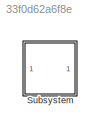
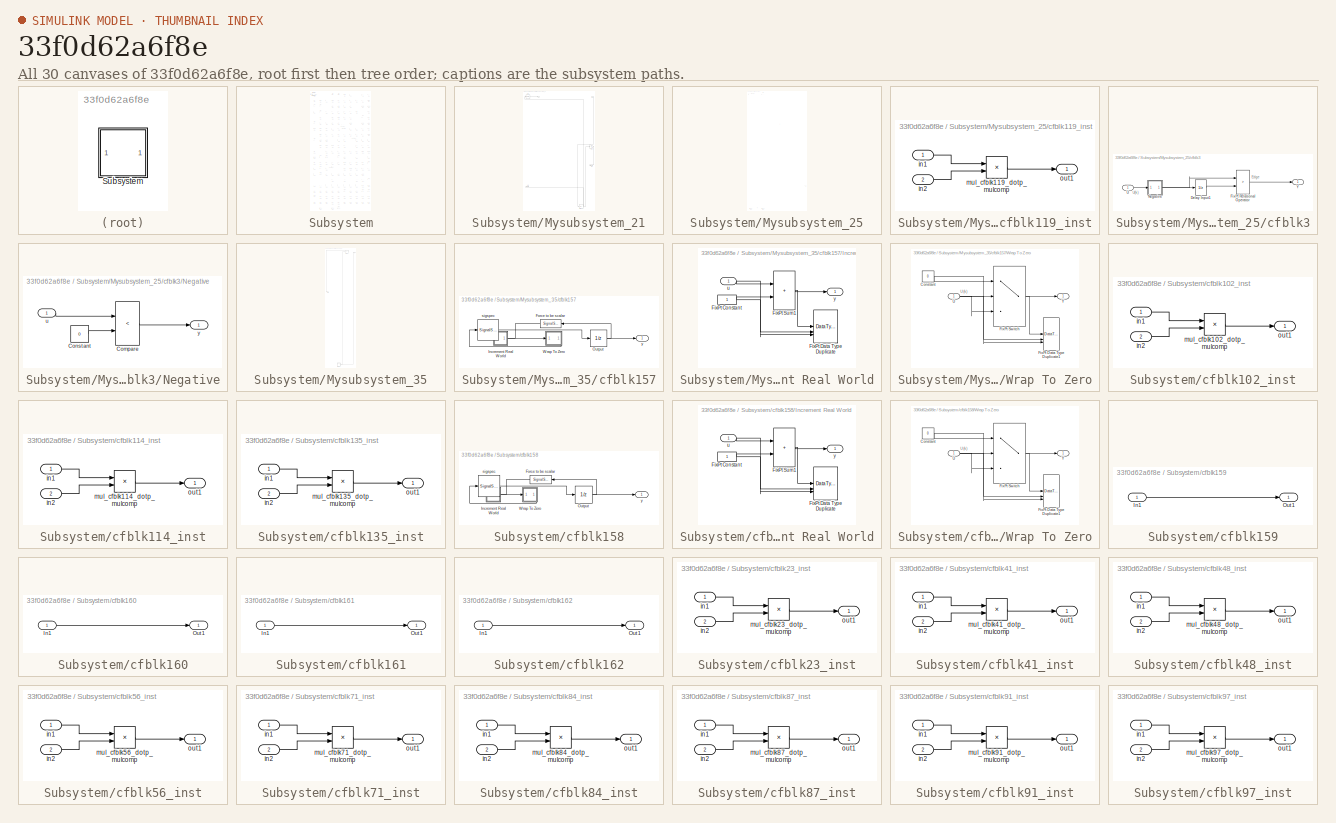
[diagram: thumbnail index - all 30 canvases of the model, root first then tree order]
MODEL slx_33f0d62a6f8e
KIND model
CONFIG AbsTol = auto
CONFIG EnableMultiTasking = off
CONFIG FixedStep = auto
CONFIG MaxStep = auto
CONFIG MinStep = auto
CONFIG RelTol = 1e-3
CONFIG SampleTimeConstraint = Unconstrained
CONFIG SolverName = VariableStepAuto
CONFIG StartTime = 0.0
CONFIG StopTime = 10.0
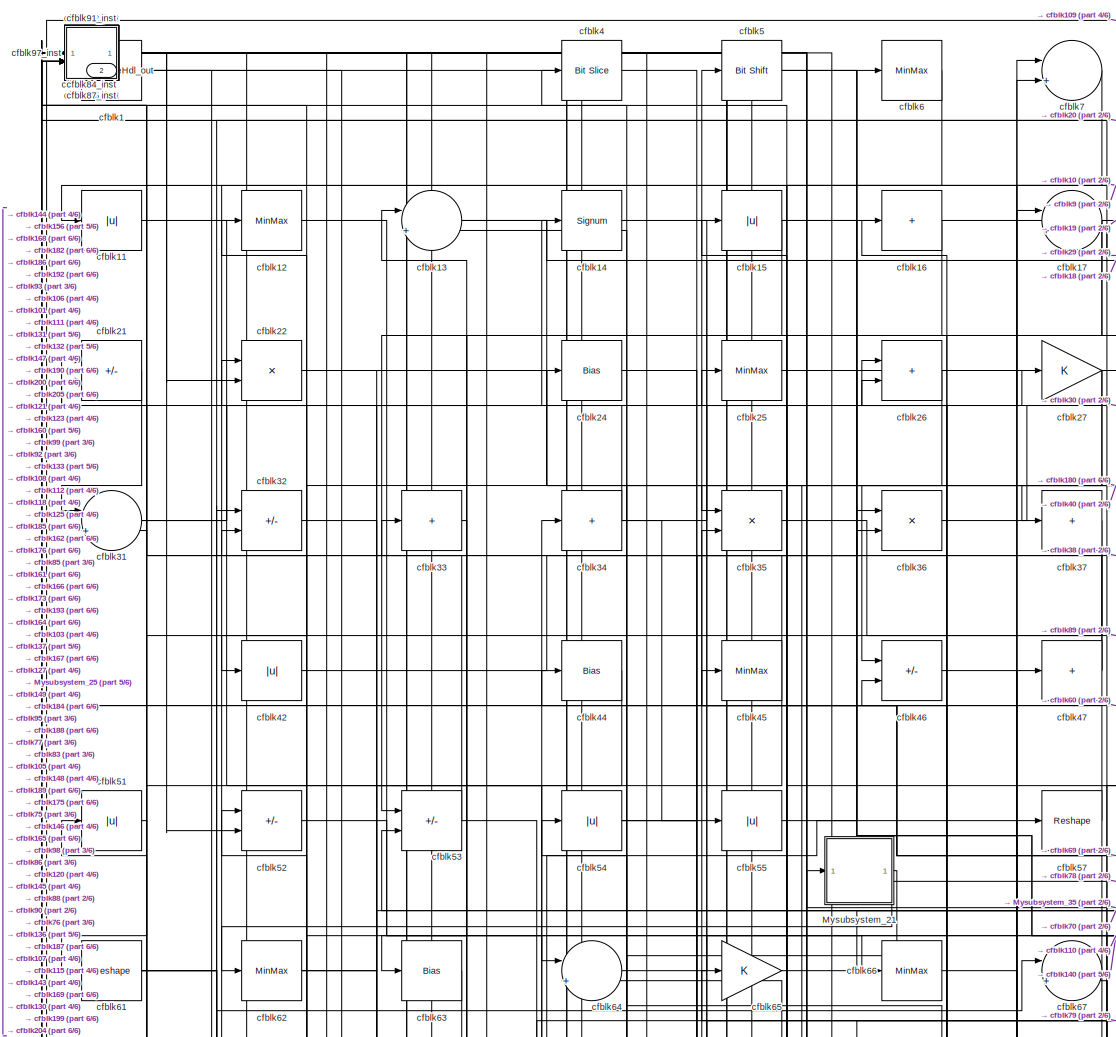
[diagram: Subsystem - part 1/6, top center region]
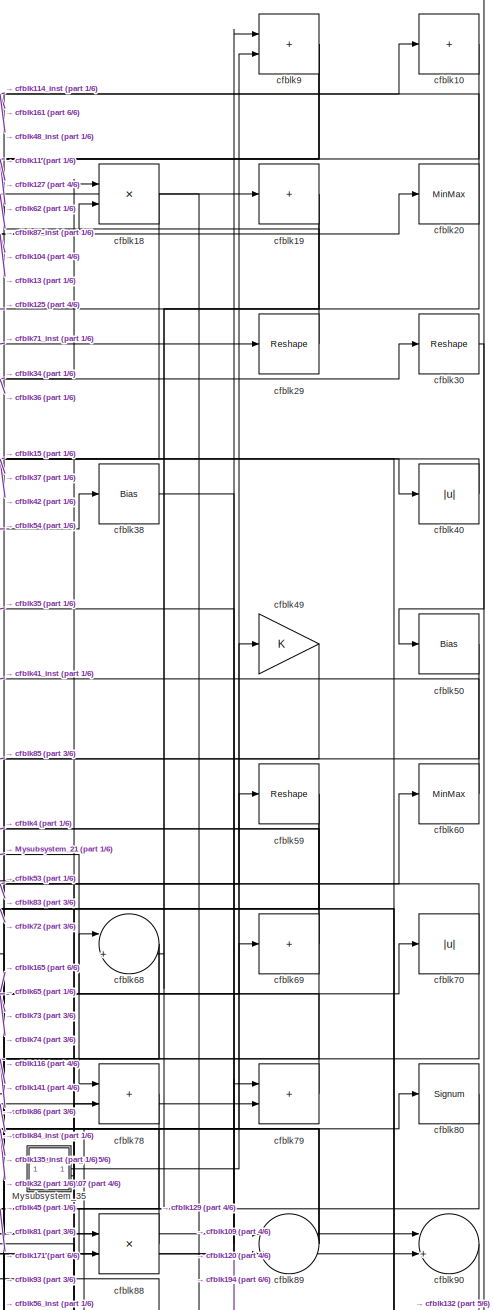
[diagram: Subsystem - part 2/6, top right region]
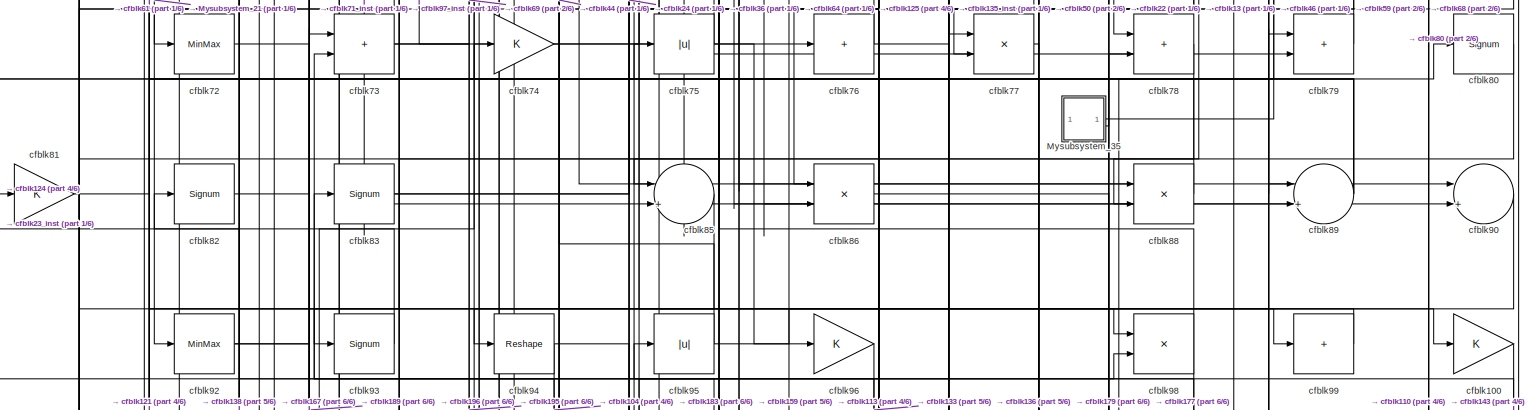
[diagram: Subsystem - part 3/6, full width, middle band]
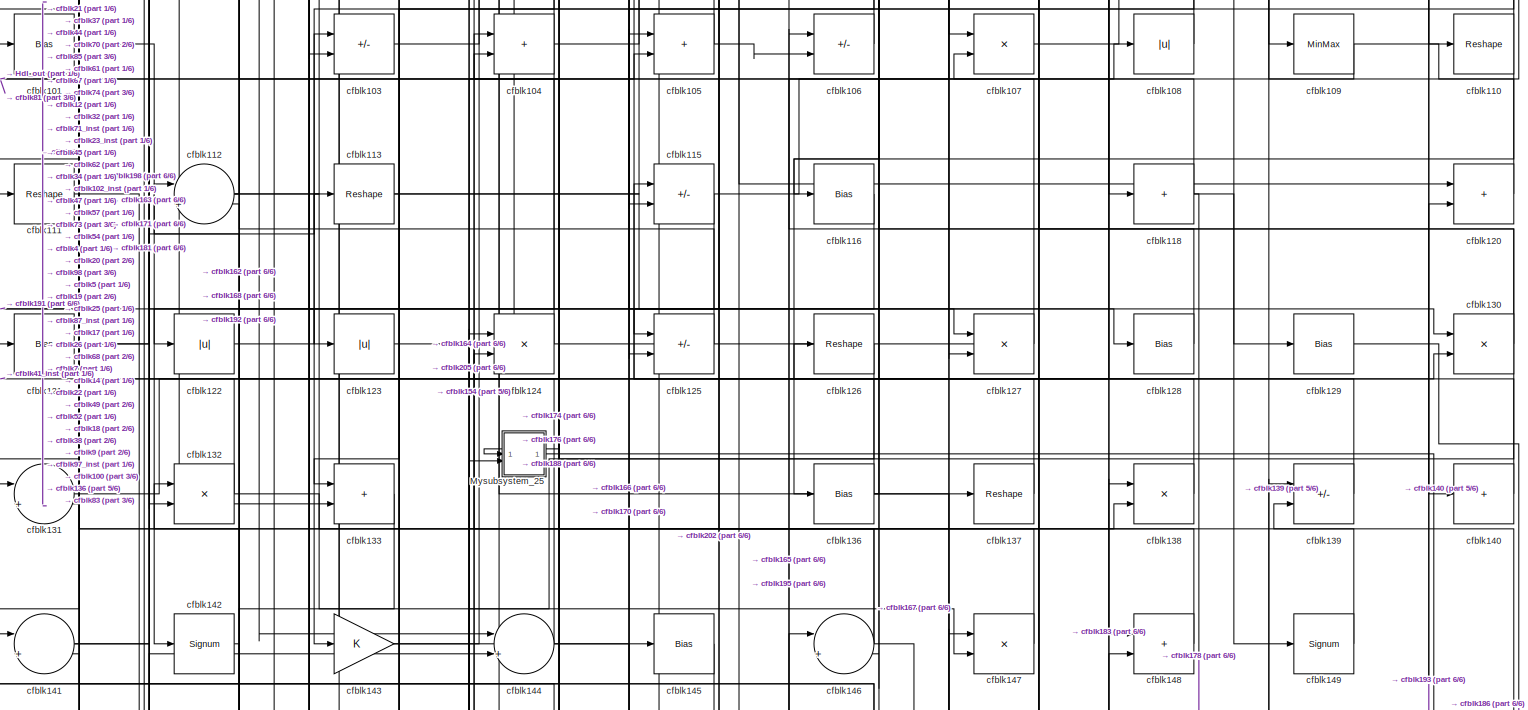
[diagram: Subsystem - part 4/6, full width, middle band]
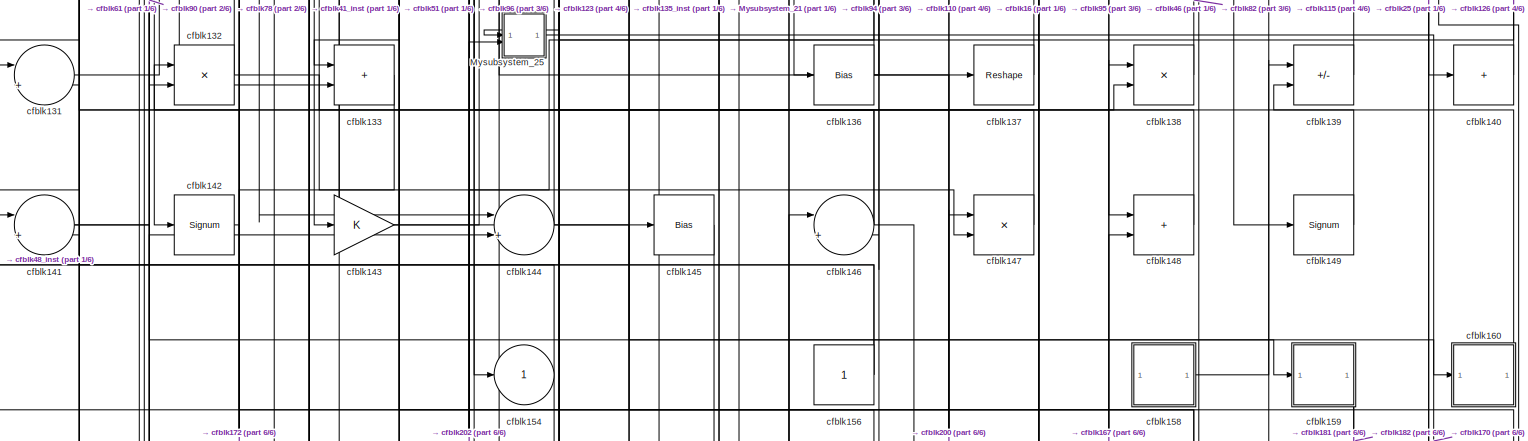
[diagram: Subsystem - part 5/6, full width, bottom band]
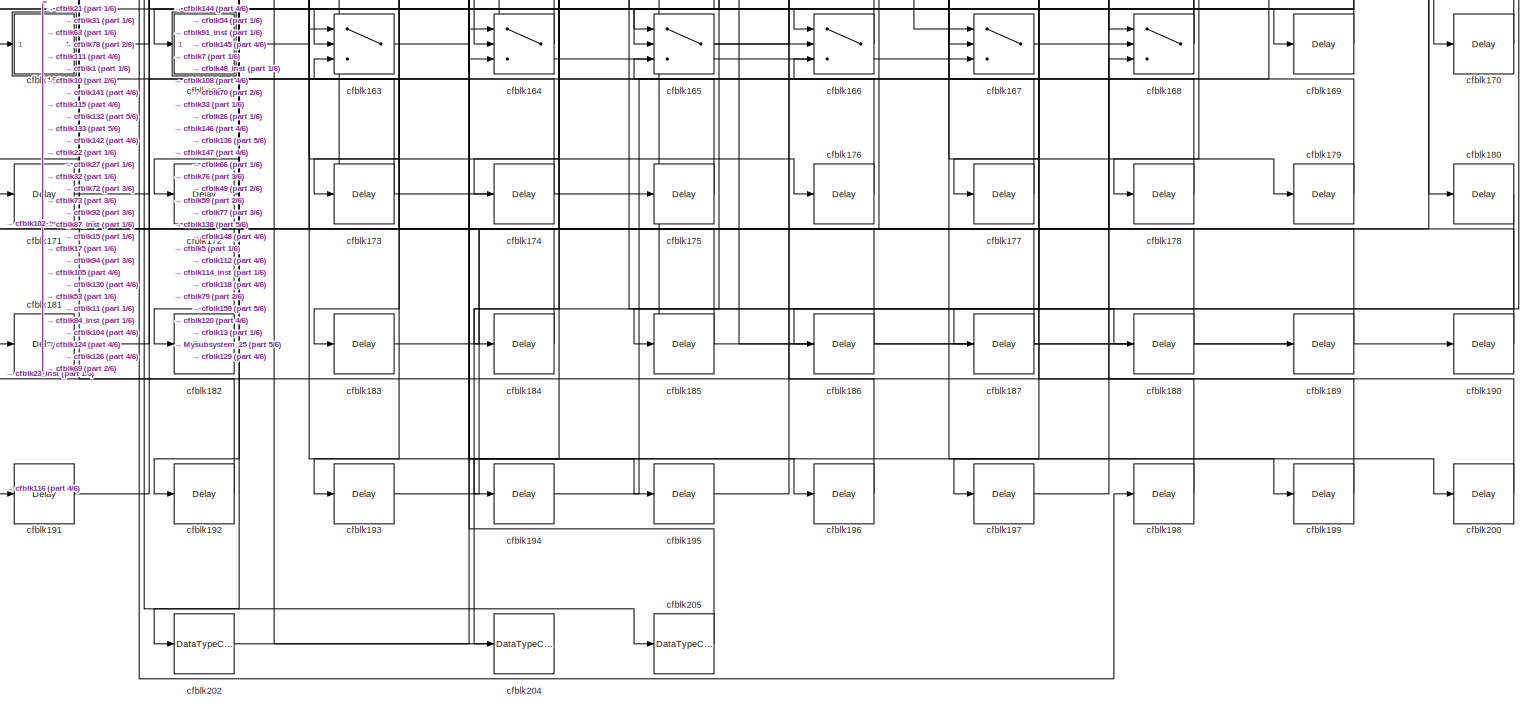
[diagram: Subsystem - part 6/6, full width, bottom band]
BLOCK [SubSystem] Subsystem
BLOCK [Outport] Subsystem/Hdl_out
  OutDataTypeStr = uint8
  Port = 2
  SampleTime = 1
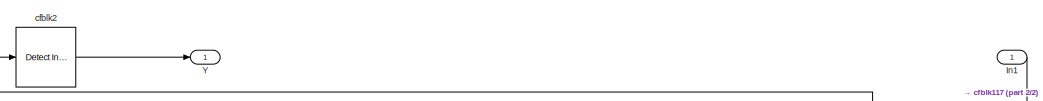
[diagram: Subsystem/Mysubsystem_21 - part 1/2, full width, top band]
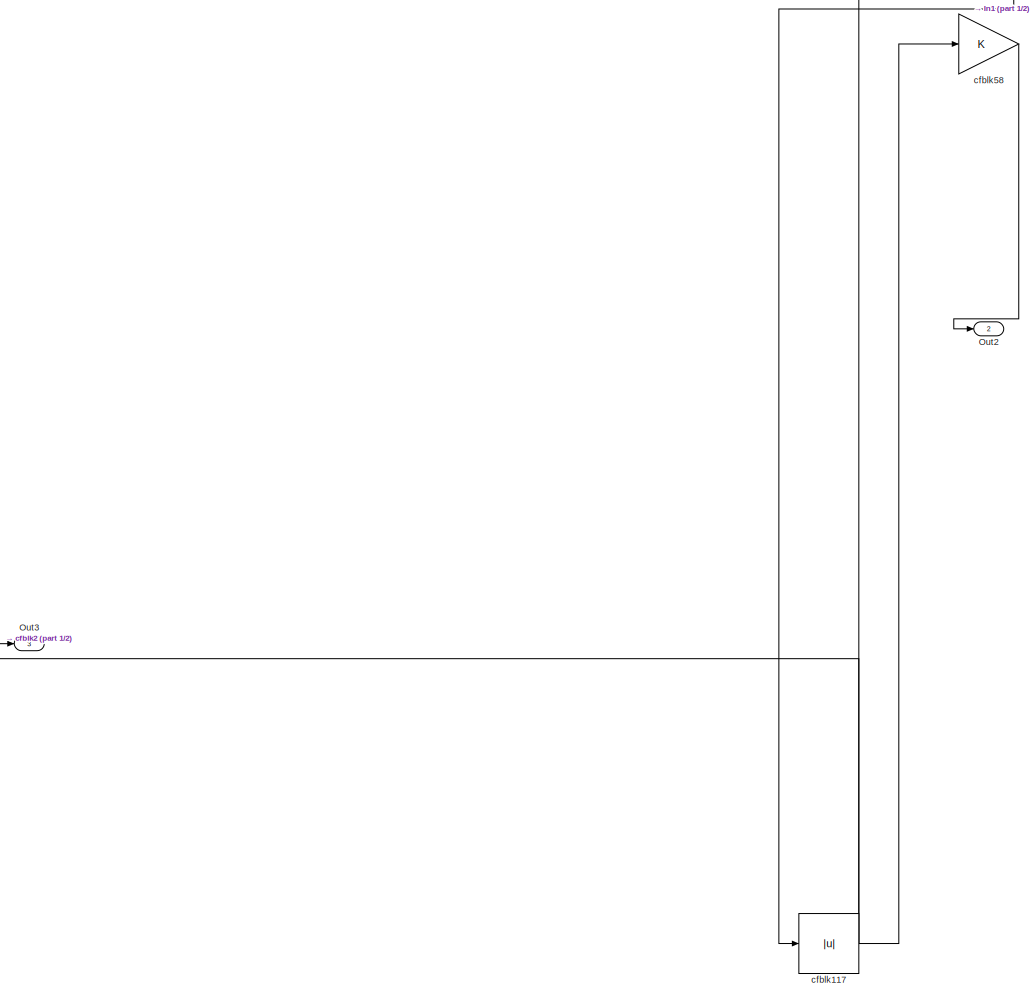
[diagram: Subsystem/Mysubsystem_21 - part 2/2, full width, bottom band]
BLOCK [SubSystem] Subsystem/Mysubsystem_21
BLOCK [Inport] Subsystem/Mysubsystem_21/In1
  OutDataTypeStr = uint8
  PortDimensions = 1
  SampleTime = 1
BLOCK [Outport] Subsystem/Mysubsystem_21/Out2
  Port = 2
  SampleTime = 1
BLOCK [Outport] Subsystem/Mysubsystem_21/Out3
  Port = 3
  SampleTime = 1
BLOCK [Outport] Subsystem/Mysubsystem_21/Y
  SampleTime = 1
BLOCK [Abs] Subsystem/Mysubsystem_21/cfblk117
  SaturateOnIntegerOverflow = off
BLOCK [Reference] Subsystem/Mysubsystem_21/cfblk2  REF=simulink/Logic and Bit
Operations/Detect
Increase
  LibrarySourceBlock = hdlsllib/Logic and Bit\nOperations/Detect\nIncrease
  SourceBlock = simulink/Logic and Bit\nOperations/Detect\nIncrease
  SourceType = Detect Increase
BLOCK [Gain] Subsystem/Mysubsystem_21/cfblk58
BLOCK [SubSystem] Subsystem/Mysubsystem_25
BLOCK [Inport] Subsystem/Mysubsystem_25/In2
  OutDataTypeStr = uint8
  Port = 2
  PortDimensions = 1
  SampleTime = 1
BLOCK [Outport] Subsystem/Mysubsystem_25/Out1
  SampleTime = 1
BLOCK [Inport] Subsystem/Mysubsystem_25/U
  OutDataTypeStr = boolean
  PortDimensions = 1
  SampleTime = 1
BLOCK [SubSystem] Subsystem/Mysubsystem_25/cfblk119_inst
BLOCK [Inport] Subsystem/Mysubsystem_25/cfblk119_inst/in1
  OutDataTypeStr = uint8
  SampleTime = 1
BLOCK [Inport] Subsystem/Mysubsystem_25/cfblk119_inst/in2
  OutDataTypeStr = uint8
  Port = 2
  SampleTime = 1
BLOCK [Product] Subsystem/Mysubsystem_25/cfblk119_inst/mul_cfblk119_dotp_mulcomp
  Inputs = **
  OutDataTypeStr = uint16
  SampleTime = 1
BLOCK [Outport] Subsystem/Mysubsystem_25/cfblk119_inst/out1
  OutDataTypeStr = uint16
  SampleTime = 1
BLOCK [DataTypeConversion] Subsystem/Mysubsystem_25/cfblk201
  OutDataTypeStr = uint8
  RndMeth = Floor
  SaturateOnIntegerOverflow = off
BLOCK [DataTypeConversion] Subsystem/Mysubsystem_25/cfblk203
  OutDataTypeStr = uint8
  RndMeth = Floor
  SaturateOnIntegerOverflow = off
BLOCK [SubSystem] Subsystem/Mysubsystem_25/cfblk3
BLOCK [UnitDelay] Subsystem/Mysubsystem_25/cfblk3/Delay Input1
  Description = Store in Global RAM
  DisableCoverage = on
  HasFrameUpgradeWarning = on
  InitialCondition = vinit
  SampleTime = -1
BLOCK [RelationalOperator] Subsystem/Mysubsystem_25/cfblk3/FixPt Relational Operator
  InputSameDT = off
  Operator = >
  OutDataTypeStr = boolean
  ZeroCross = off
BLOCK [SubSystem] Subsystem/Mysubsystem_25/cfblk3/Negative
BLOCK [RelationalOperator] Subsystem/Mysubsystem_25/cfblk3/Negative/Compare
  Operator = <
  OutDataTypeStr = boolean
  ZeroCross = off
BLOCK [Constant] Subsystem/Mysubsystem_25/cfblk3/Negative/Constant
  DisableCoverage = on
  OutDataTypeStr = Inherit: Inherit via back propagation
  PreserveConstantTs = on
  SampleTime = -1
  Value = 0
BLOCK [Inport] Subsystem/Mysubsystem_25/cfblk3/Negative/u
  OutDataTypeStr = boolean
  SampleTime = 1
BLOCK [Outport] Subsystem/Mysubsystem_25/cfblk3/Negative/y
  SampleTime = 1
BLOCK [Inport] Subsystem/Mysubsystem_25/cfblk3/U
  OutDataTypeStr = boolean
  SampleTime = 1
BLOCK [Outport] Subsystem/Mysubsystem_25/cfblk3/Y
  SampleTime = 1
BLOCK [SubSystem] Subsystem/Mysubsystem_35
BLOCK [Outport] Subsystem/Mysubsystem_35/Out2
  Port = 2
  SampleTime = 1
BLOCK [SubSystem] Subsystem/Mysubsystem_35/cfblk157
BLOCK [SignalSpecification] Subsystem/Mysubsystem_35/cfblk157/Force to be scalar
  Dimensions = 1
  DisableCoverage = on
BLOCK [SubSystem] Subsystem/Mysubsystem_35/cfblk157/Increment Real World
BLOCK [Constant] Subsystem/Mysubsystem_35/cfblk157/Increment Real World/FixPt Constant
  DisableCoverage = on
  OutDataTypeStr = Inherit: Inherit via back propagation
  SampleTime = -1
BLOCK [DataTypeDuplicate] Subsystem/Mysubsystem_35/cfblk157/Increment Real World/FixPt Data Type Duplicate
  DisableCoverage = on
  NumInputPorts = 3
BLOCK [Sum] Subsystem/Mysubsystem_35/cfblk157/Increment Real World/FixPt Sum1
  IconShape = rectangular
  InputSameDT = on
  LockScale = on
  OutDataTypeStr = Inherit: Inherit via back propagation
BLOCK [Inport] Subsystem/Mysubsystem_35/cfblk157/Increment Real World/u
  OutDataTypeStr = uint8
  SampleTime = 1
BLOCK [Outport] Subsystem/Mysubsystem_35/cfblk157/Increment Real World/y
  SampleTime = 1
BLOCK [UnitDelay] Subsystem/Mysubsystem_35/cfblk157/Output
  HasFrameUpgradeWarning = on
  InitialCondition = 0.0
  SampleTime = tsamp
BLOCK [SubSystem] Subsystem/Mysubsystem_35/cfblk157/Wrap To Zero
BLOCK [Constant] Subsystem/Mysubsystem_35/cfblk157/Wrap To Zero/Constant
  DisableCoverage = on
  OutDataTypeStr = Inherit: Inherit via back propagation
  SampleTime = -1
  Value = 0
BLOCK [DataTypeDuplicate] Subsystem/Mysubsystem_35/cfblk157/Wrap To Zero/FixPt Data Type Duplicate1
  DisableCoverage = on
  NumInputPorts = 3
BLOCK [Switch] Subsystem/Mysubsystem_35/cfblk157/Wrap To Zero/FixPt Switch
  Criteria = u2 > Threshold
  InputSameDT = off
  OutDataTypeStr = Inherit: Inherit via back propagation
  SaturateOnIntegerOverflow = off
  Threshold = Threshold
  ZeroCross = off
BLOCK [Inport] Subsystem/Mysubsystem_35/cfblk157/Wrap To Zero/U
  OutDataTypeStr = uint8
  SampleTime = 1
BLOCK [Outport] Subsystem/Mysubsystem_35/cfblk157/Wrap To Zero/Y
  SampleTime = 1
BLOCK [SignalSpecification] Subsystem/Mysubsystem_35/cfblk157/sigspec
  Dimensions = 1
  OutDataTypeStr = uint8
BLOCK [Outport] Subsystem/Mysubsystem_35/cfblk157/y
  SampleTime = 1
BLOCK [Sum] Subsystem/Mysubsystem_35/cfblk8
  IconShape = rectangular
  Inputs = +
BLOCK [Outport] Subsystem/Mysubsystem_35/y
  SampleTime = 1
BLOCK [Reference] Subsystem/cfblk1  REF=simulink/Logic and Bit
Operations/Bit Clear
  LibrarySourceBlock = hdlsllib/Logic and Bit\nOperations/Bit Clear
  SourceBlock = simulink/Logic and Bit\nOperations/Bit Clear
  SourceType = Bit Clear
BLOCK [Sum] Subsystem/cfblk10
  IconShape = rectangular
  Inputs = +
  OutDataTypeStr = uint8
BLOCK [Gain] Subsystem/cfblk100
  OutDataTypeStr = uint8
BLOCK [Bias] Subsystem/cfblk101
  Bias = 0.0
  SaturateOnIntegerOverflow = off
BLOCK [SubSystem] Subsystem/cfblk102_inst
BLOCK [Inport] Subsystem/cfblk102_inst/in1
  OutDataTypeStr = uint8
  SampleTime = 1
BLOCK [Inport] Subsystem/cfblk102_inst/in2
  OutDataTypeStr = uint8
  Port = 2
  SampleTime = 1
BLOCK [Product] Subsystem/cfblk102_inst/mul_cfblk102_dotp_mulcomp
  Inputs = **
  OutDataTypeStr = uint8
  SampleTime = 1
BLOCK [Outport] Subsystem/cfblk102_inst/out1
  OutDataTypeStr = uint8
  SampleTime = 1
BLOCK [Sum] Subsystem/cfblk103
  IconShape = rectangular
  Inputs = +-
  OutDataTypeStr = uint8
BLOCK [Sum] Subsystem/cfblk104
  IconShape = rectangular
  OutDataTypeStr = uint8
BLOCK [Sum] Subsystem/cfblk105
  IconShape = rectangular
  OutDataTypeStr = uint8
BLOCK [Sum] Subsystem/cfblk106
  IconShape = rectangular
  Inputs = +-
  OutDataTypeStr = uint8
BLOCK [Product] Subsystem/cfblk107
  Inputs = */
  OutDataTypeStr = uint8
  RndMeth = Zero
  SaturateOnIntegerOverflow = on
BLOCK [Abs] Subsystem/cfblk108
  OutDataTypeStr = uint8
  SaturateOnIntegerOverflow = off
BLOCK [MinMax] Subsystem/cfblk109
  OutDataTypeStr = uint8
BLOCK [Abs] Subsystem/cfblk11
  OutDataTypeStr = uint8
  SaturateOnIntegerOverflow = off
BLOCK [Reshape] Subsystem/cfblk110
BLOCK [Reshape] Subsystem/cfblk111
BLOCK [Sum] Subsystem/cfblk112
  Inputs = |++
  OutDataTypeStr = uint8
BLOCK [Reshape] Subsystem/cfblk113
BLOCK [SubSystem] Subsystem/cfblk114_inst
BLOCK [Inport] Subsystem/cfblk114_inst/in1
  OutDataTypeStr = uint8
  SampleTime = 1
BLOCK [Inport] Subsystem/cfblk114_inst/in2
  OutDataTypeStr = uint8
  Port = 2
  SampleTime = 1
BLOCK [Product] Subsystem/cfblk114_inst/mul_cfblk114_dotp_mulcomp
  Inputs = **
  OutDataTypeStr = uint8
  SampleTime = 1
BLOCK [Outport] Subsystem/cfblk114_inst/out1
  OutDataTypeStr = uint8
  SampleTime = 1
BLOCK [Sum] Subsystem/cfblk115
  IconShape = rectangular
  Inputs = +-
  OutDataTypeStr = uint8
BLOCK [Bias] Subsystem/cfblk116
  Bias = 0.0
  SaturateOnIntegerOverflow = off
BLOCK [Sum] Subsystem/cfblk118
  IconShape = rectangular
  Inputs = +
  OutDataTypeStr = uint8
BLOCK [MinMax] Subsystem/cfblk12
  OutDataTypeStr = uint8
BLOCK [Sum] Subsystem/cfblk120
  IconShape = rectangular
  OutDataTypeStr = uint8
BLOCK [Bias] Subsystem/cfblk121
  Bias = 0.0
  SaturateOnIntegerOverflow = off
BLOCK [Abs] Subsystem/cfblk122
  OutDataTypeStr = uint8
  SaturateOnIntegerOverflow = off
BLOCK [Abs] Subsystem/cfblk123
  OutDataTypeStr = uint8
  SaturateOnIntegerOverflow = off
BLOCK [Product] Subsystem/cfblk124
  Inputs = */
  OutDataTypeStr = uint8
  RndMeth = Zero
  SaturateOnIntegerOverflow = on
BLOCK [Sum] Subsystem/cfblk125
  IconShape = rectangular
  Inputs = +-
  OutDataTypeStr = uint8
BLOCK [Reshape] Subsystem/cfblk126
BLOCK [Product] Subsystem/cfblk127
  Inputs = */
  OutDataTypeStr = uint8
  RndMeth = Zero
  SaturateOnIntegerOverflow = on
BLOCK [Bias] Subsystem/cfblk128
  Bias = 0.0
  SaturateOnIntegerOverflow = off
BLOCK [Bias] Subsystem/cfblk129
  Bias = 0.0
  SaturateOnIntegerOverflow = off
BLOCK [Sum] Subsystem/cfblk13
  Inputs = |++
  OutDataTypeStr = uint8
BLOCK [Product] Subsystem/cfblk130
  Inputs = */
  OutDataTypeStr = uint8
  RndMeth = Zero
  SaturateOnIntegerOverflow = on
BLOCK [Sum] Subsystem/cfblk131
  Inputs = |++
  OutDataTypeStr = uint8
BLOCK [Product] Subsystem/cfblk132
  Inputs = */
  OutDataTypeStr = uint8
  RndMeth = Zero
  SaturateOnIntegerOverflow = on
BLOCK [Sum] Subsystem/cfblk133
  IconShape = rectangular
  OutDataTypeStr = uint8
BLOCK [SubSystem] Subsystem/cfblk135_inst
BLOCK [Inport] Subsystem/cfblk135_inst/in1
  OutDataTypeStr = uint8
  SampleTime = 1
BLOCK [Inport] Subsystem/cfblk135_inst/in2
  OutDataTypeStr = uint8
  Port = 2
  SampleTime = 1
BLOCK [Product] Subsystem/cfblk135_inst/mul_cfblk135_dotp_mulcomp
  Inputs = **
  OutDataTypeStr = uint8
  SampleTime = 1
BLOCK [Outport] Subsystem/cfblk135_inst/out1
  OutDataTypeStr = uint8
  SampleTime = 1
BLOCK [Bias] Subsystem/cfblk136
  Bias = 0.0
  SaturateOnIntegerOverflow = off
BLOCK [Reshape] Subsystem/cfblk137
BLOCK [Product] Subsystem/cfblk138
  Inputs = */
  OutDataTypeStr = uint8
  RndMeth = Zero
  SaturateOnIntegerOverflow = on
BLOCK [Sum] Subsystem/cfblk139
  IconShape = rectangular
  Inputs = +-
  OutDataTypeStr = uint8
BLOCK [Signum] Subsystem/cfblk14
BLOCK [Sum] Subsystem/cfblk140
  IconShape = rectangular
  Inputs = +
  OutDataTypeStr = uint8
BLOCK [Sum] Subsystem/cfblk141
  Inputs = |++
  OutDataTypeStr = uint8
BLOCK [Signum] Subsystem/cfblk142
BLOCK [Gain] Subsystem/cfblk143
  OutDataTypeStr = uint8
BLOCK [Sum] Subsystem/cfblk144
  Inputs = |++
  OutDataTypeStr = uint8
BLOCK [Bias] Subsystem/cfblk145
  Bias = 0.0
  SaturateOnIntegerOverflow = off
BLOCK [Sum] Subsystem/cfblk146
  Inputs = |++
  OutDataTypeStr = uint8
BLOCK [Product] Subsystem/cfblk147
  Inputs = */
  OutDataTypeStr = uint8
  RndMeth = Zero
  SaturateOnIntegerOverflow = on
BLOCK [Sum] Subsystem/cfblk148
  IconShape = rectangular
  OutDataTypeStr = uint8
BLOCK [Signum] Subsystem/cfblk149
BLOCK [Abs] Subsystem/cfblk15
  OutDataTypeStr = uint8
  SaturateOnIntegerOverflow = off
BLOCK [Outport] Subsystem/cfblk154
  OutDataTypeStr = uint8
  SampleTime = 1
  VectorParamsAs1DForOutWhenUnconnected = off
BLOCK [Constant] Subsystem/cfblk156
  OutDataTypeStr = uint8
  SampleTime = -1
BLOCK [SubSystem] Subsystem/cfblk158
BLOCK [SignalSpecification] Subsystem/cfblk158/Force to be scalar
  Dimensions = 1
  DisableCoverage = on
BLOCK [SubSystem] Subsystem/cfblk158/Increment Real World
BLOCK [Constant] Subsystem/cfblk158/Increment Real World/FixPt Constant
  DisableCoverage = on
  OutDataTypeStr = Inherit: Inherit via back propagation
  SampleTime = -1
BLOCK [DataTypeDuplicate] Subsystem/cfblk158/Increment Real World/FixPt Data Type Duplicate
  DisableCoverage = on
  NumInputPorts = 3
BLOCK [Sum] Subsystem/cfblk158/Increment Real World/FixPt Sum1
  IconShape = rectangular
  InputSameDT = on
  LockScale = on
  OutDataTypeStr = Inherit: Inherit via back propagation
BLOCK [Inport] Subsystem/cfblk158/Increment Real World/u
  OutDataTypeStr = uint16
  SampleTime = 1
BLOCK [Outport] Subsystem/cfblk158/Increment Real World/y
  SampleTime = 1
BLOCK [UnitDelay] Subsystem/cfblk158/Output
  HasFrameUpgradeWarning = on
  InitialCondition = 0.0
  SampleTime = tsamp
BLOCK [SubSystem] Subsystem/cfblk158/Wrap To Zero
BLOCK [Constant] Subsystem/cfblk158/Wrap To Zero/Constant
  DisableCoverage = on
  OutDataTypeStr = Inherit: Inherit via back propagation
  SampleTime = -1
  Value = 0
BLOCK [DataTypeDuplicate] Subsystem/cfblk158/Wrap To Zero/FixPt Data Type Duplicate1
  DisableCoverage = on
  NumInputPorts = 3
BLOCK [Switch] Subsystem/cfblk158/Wrap To Zero/FixPt Switch
  Criteria = u2 > Threshold
  InputSameDT = off
  OutDataTypeStr = Inherit: Inherit via back propagation
  SaturateOnIntegerOverflow = off
  Threshold = Threshold
  ZeroCross = off
BLOCK [Inport] Subsystem/cfblk158/Wrap To Zero/U
  OutDataTypeStr = uint16
  SampleTime = 1
BLOCK [Outport] Subsystem/cfblk158/Wrap To Zero/Y
  SampleTime = 1
BLOCK [SignalSpecification] Subsystem/cfblk158/sigspec
  Dimensions = 1
  OutDataTypeStr = uint16
BLOCK [Outport] Subsystem/cfblk158/y
  SampleTime = 1
BLOCK [SubSystem] Subsystem/cfblk159
BLOCK [Inport] Subsystem/cfblk159/In1
  OutDataTypeStr = uint8
  PortDimensions = 1
  SampleTime = 1
BLOCK [Outport] Subsystem/cfblk159/Out1
  SampleTime = 1
BLOCK [Sum] Subsystem/cfblk16
  IconShape = rectangular
  Inputs = +
  OutDataTypeStr = uint8
BLOCK [SubSystem] Subsystem/cfblk160
BLOCK [Inport] Subsystem/cfblk160/In1
  OutDataTypeStr = uint8
  PortDimensions = 1
  SampleTime = 1
BLOCK [Outport] Subsystem/cfblk160/Out1
  SampleTime = 1
BLOCK [SubSystem] Subsystem/cfblk161
BLOCK [Inport] Subsystem/cfblk161/In1
  OutDataTypeStr = uint8
  PortDimensions = 1
  SampleTime = 1
BLOCK [Outport] Subsystem/cfblk161/Out1
  SampleTime = 1
BLOCK [SubSystem] Subsystem/cfblk162
BLOCK [Inport] Subsystem/cfblk162/In1
  OutDataTypeStr = uint8
  PortDimensions = 1
  SampleTime = 1
BLOCK [Outport] Subsystem/cfblk162/Out1
  SampleTime = 1
BLOCK [Switch] Subsystem/cfblk163
  InputSameDT = off
  OutDataTypeStr = uint8
  SaturateOnIntegerOverflow = off
BLOCK [Switch] Subsystem/cfblk164
  InputSameDT = off
  OutDataTypeStr = uint8
  SaturateOnIntegerOverflow = off
BLOCK [Switch] Subsystem/cfblk165
  InputSameDT = off
  OutDataTypeStr = uint8
  SaturateOnIntegerOverflow = off
BLOCK [Switch] Subsystem/cfblk166
  InputSameDT = off
  OutDataTypeStr = uint8
  SaturateOnIntegerOverflow = off
BLOCK [Switch] Subsystem/cfblk167
  InputSameDT = off
  OutDataTypeStr = uint8
  SaturateOnIntegerOverflow = off
BLOCK [Switch] Subsystem/cfblk168
  InputSameDT = off
  OutDataTypeStr = uint8
  SaturateOnIntegerOverflow = off
BLOCK [Delay] Subsystem/cfblk169
  InputPortMap = u0
  SampleTime = 1
BLOCK [Sum] Subsystem/cfblk17
  Inputs = |++
  OutDataTypeStr = uint8
BLOCK [Delay] Subsystem/cfblk170
  InputPortMap = u0
  SampleTime = 1
BLOCK [Delay] Subsystem/cfblk171
  InputPortMap = u0
  SampleTime = 1
BLOCK [Delay] Subsystem/cfblk172
  InputPortMap = u0
  SampleTime = 1
BLOCK [Delay] Subsystem/cfblk173
  InputPortMap = u0
  SampleTime = 1
BLOCK [Delay] Subsystem/cfblk174
  InputPortMap = u0
  SampleTime = 1
BLOCK [Delay] Subsystem/cfblk175
  InputPortMap = u0
  SampleTime = 1
BLOCK [Delay] Subsystem/cfblk176
  InputPortMap = u0
  SampleTime = 1
BLOCK [Delay] Subsystem/cfblk177
  InputPortMap = u0
  SampleTime = 1
BLOCK [Delay] Subsystem/cfblk178
  InputPortMap = u0
  SampleTime = 1
BLOCK [Delay] Subsystem/cfblk179
  InputPortMap = u0
  SampleTime = 1
BLOCK [Product] Subsystem/cfblk18
  Inputs = */
  OutDataTypeStr = uint8
  RndMeth = Zero
  SaturateOnIntegerOverflow = on
BLOCK [Delay] Subsystem/cfblk180
  InputPortMap = u0
  SampleTime = 1
BLOCK [Delay] Subsystem/cfblk181
  InputPortMap = u0
  SampleTime = 1
BLOCK [Delay] Subsystem/cfblk182
  InputPortMap = u0
  SampleTime = 1
BLOCK [Delay] Subsystem/cfblk183
  InputPortMap = u0
  SampleTime = 1
BLOCK [Delay] Subsystem/cfblk184
  InputPortMap = u0
  SampleTime = 1
BLOCK [Delay] Subsystem/cfblk185
  InputPortMap = u0
  SampleTime = 1
BLOCK [Delay] Subsystem/cfblk186
  InputPortMap = u0
  SampleTime = 1
BLOCK [Delay] Subsystem/cfblk187
  InputPortMap = u0
  SampleTime = 1
BLOCK [Delay] Subsystem/cfblk188
  InputPortMap = u0
  SampleTime = 1
BLOCK [Delay] Subsystem/cfblk189
  InputPortMap = u0
  SampleTime = 1
BLOCK [Sum] Subsystem/cfblk19
  IconShape = rectangular
  Inputs = +
  OutDataTypeStr = uint8
BLOCK [Delay] Subsystem/cfblk190
  InputPortMap = u0
  SampleTime = 1
BLOCK [Delay] Subsystem/cfblk191
  InputPortMap = u0
  SampleTime = 1
BLOCK [Delay] Subsystem/cfblk192
  InputPortMap = u0
  SampleTime = 1
BLOCK [Delay] Subsystem/cfblk193
  InputPortMap = u0
  SampleTime = 1
BLOCK [Delay] Subsystem/cfblk194
  InputPortMap = u0
  SampleTime = 1
BLOCK [Delay] Subsystem/cfblk195
  InputPortMap = u0
  SampleTime = 1
BLOCK [Delay] Subsystem/cfblk196
  InputPortMap = u0
  SampleTime = 1
BLOCK [Delay] Subsystem/cfblk197
  InputPortMap = u0
  SampleTime = 1
BLOCK [Delay] Subsystem/cfblk198
  InputPortMap = u0
  SampleTime = 1
BLOCK [Delay] Subsystem/cfblk199
  InputPortMap = u0
  SampleTime = 1
BLOCK [MinMax] Subsystem/cfblk20
  OutDataTypeStr = uint8
BLOCK [Delay] Subsystem/cfblk200
  InputPortMap = u0
  SampleTime = 1
BLOCK [DataTypeConversion] Subsystem/cfblk202
  OutDataTypeStr = uint8
  RndMeth = Floor
  SaturateOnIntegerOverflow = off
BLOCK [DataTypeConversion] Subsystem/cfblk204
  OutDataTypeStr = uint8
  RndMeth = Floor
  SaturateOnIntegerOverflow = off
BLOCK [DataTypeConversion] Subsystem/cfblk205
  OutDataTypeStr = uint8
  RndMeth = Floor
  SaturateOnIntegerOverflow = off
BLOCK [Sum] Subsystem/cfblk21
  IconShape = rectangular
  Inputs = +-
  OutDataTypeStr = uint8
BLOCK [Product] Subsystem/cfblk22
  Inputs = */
  OutDataTypeStr = uint8
  RndMeth = Zero
  SaturateOnIntegerOverflow = on
BLOCK [SubSystem] Subsystem/cfblk23_inst
BLOCK [Inport] Subsystem/cfblk23_inst/in1
  OutDataTypeStr = uint8
  SampleTime = 1
BLOCK [Inport] Subsystem/cfblk23_inst/in2
  OutDataTypeStr = uint8
  Port = 2
  SampleTime = 1
BLOCK [Product] Subsystem/cfblk23_inst/mul_cfblk23_dotp_mulcomp
  Inputs = **
  OutDataTypeStr = uint8
  SampleTime = 1
BLOCK [Outport] Subsystem/cfblk23_inst/out1
  OutDataTypeStr = uint8
  SampleTime = 1
BLOCK [Bias] Subsystem/cfblk24
  Bias = 0.0
  SaturateOnIntegerOverflow = off
BLOCK [MinMax] Subsystem/cfblk25
  OutDataTypeStr = uint8
BLOCK [Sum] Subsystem/cfblk26
  IconShape = rectangular
  OutDataTypeStr = uint8
BLOCK [Gain] Subsystem/cfblk27
  OutDataTypeStr = uint8
BLOCK [Reshape] Subsystem/cfblk29
BLOCK [Reshape] Subsystem/cfblk30
BLOCK [Sum] Subsystem/cfblk31
  Inputs = |++
  OutDataTypeStr = uint8
BLOCK [Sum] Subsystem/cfblk32
  IconShape = rectangular
  Inputs = +-
  OutDataTypeStr = uint8
BLOCK [Sum] Subsystem/cfblk33
  IconShape = rectangular
  Inputs = +
  OutDataTypeStr = uint8
BLOCK [Sum] Subsystem/cfblk34
  IconShape = rectangular
  Inputs = +
  OutDataTypeStr = uint8
BLOCK [Product] Subsystem/cfblk35
  Inputs = */
  OutDataTypeStr = uint8
  RndMeth = Zero
  SaturateOnIntegerOverflow = on
BLOCK [Product] Subsystem/cfblk36
  Inputs = */
  OutDataTypeStr = uint8
  RndMeth = Zero
  SaturateOnIntegerOverflow = on
BLOCK [Sum] Subsystem/cfblk37
  IconShape = rectangular
  Inputs = +
  OutDataTypeStr = uint8
BLOCK [Bias] Subsystem/cfblk38
  Bias = 0.0
  SaturateOnIntegerOverflow = off
BLOCK [Reference] Subsystem/cfblk4  REF=hdlsllib/Logic and Bit
Operations/Bit Slice
  SourceBlock = hdlsllib/Logic and Bit\nOperations/Bit Slice
  SourceType = Bit Slice
BLOCK [Abs] Subsystem/cfblk40
  OutDataTypeStr = uint8
  SaturateOnIntegerOverflow = off
BLOCK [SubSystem] Subsystem/cfblk41_inst
BLOCK [Inport] Subsystem/cfblk41_inst/in1
  OutDataTypeStr = uint8
  SampleTime = 1
BLOCK [Inport] Subsystem/cfblk41_inst/in2
  OutDataTypeStr = uint8
  Port = 2
  SampleTime = 1
BLOCK [Product] Subsystem/cfblk41_inst/mul_cfblk41_dotp_mulcomp
  Inputs = **
  OutDataTypeStr = uint8
  SampleTime = 1
BLOCK [Outport] Subsystem/cfblk41_inst/out1
  OutDataTypeStr = uint8
  SampleTime = 1
BLOCK [Abs] Subsystem/cfblk42
  OutDataTypeStr = uint8
  SaturateOnIntegerOverflow = off
BLOCK [Bias] Subsystem/cfblk44
  Bias = 0.0
  SaturateOnIntegerOverflow = off
BLOCK [MinMax] Subsystem/cfblk45
  OutDataTypeStr = uint8
BLOCK [Sum] Subsystem/cfblk46
  IconShape = rectangular
  Inputs = +-
  OutDataTypeStr = uint8
BLOCK [Sum] Subsystem/cfblk47
  IconShape = rectangular
  Inputs = +
  OutDataTypeStr = uint8
BLOCK [SubSystem] Subsystem/cfblk48_inst
BLOCK [Inport] Subsystem/cfblk48_inst/in1
  OutDataTypeStr = uint8
  SampleTime = 1
BLOCK [Inport] Subsystem/cfblk48_inst/in2
  OutDataTypeStr = uint8
  Port = 2
  SampleTime = 1
BLOCK [Product] Subsystem/cfblk48_inst/mul_cfblk48_dotp_mulcomp
  Inputs = **
  OutDataTypeStr = uint8
  SampleTime = 1
BLOCK [Outport] Subsystem/cfblk48_inst/out1
  OutDataTypeStr = uint8
  SampleTime = 1
BLOCK [Gain] Subsystem/cfblk49
  OutDataTypeStr = uint8
BLOCK [Reference] Subsystem/cfblk5  REF=hdlsllib/Logic and Bit
Operations/Bit Shift
  SourceBlock = hdlsllib/Logic and Bit\nOperations/Bit Shift
  SourceType = Bit Shift
BLOCK [Bias] Subsystem/cfblk50
  Bias = 0.0
  SaturateOnIntegerOverflow = off
BLOCK [Abs] Subsystem/cfblk51
  OutDataTypeStr = uint8
  SaturateOnIntegerOverflow = off
BLOCK [Sum] Subsystem/cfblk52
  IconShape = rectangular
  Inputs = +-
  OutDataTypeStr = uint8
BLOCK [Sum] Subsystem/cfblk53
  IconShape = rectangular
  Inputs = +-
  OutDataTypeStr = uint8
BLOCK [Abs] Subsystem/cfblk54
  OutDataTypeStr = uint8
  SaturateOnIntegerOverflow = off
BLOCK [Abs] Subsystem/cfblk55
  OutDataTypeStr = uint8
  SaturateOnIntegerOverflow = off
BLOCK [SubSystem] Subsystem/cfblk56_inst
BLOCK [Inport] Subsystem/cfblk56_inst/in1
  OutDataTypeStr = uint8
  SampleTime = 1
BLOCK [Inport] Subsystem/cfblk56_inst/in2
  OutDataTypeStr = uint8
  Port = 2
  SampleTime = 1
BLOCK [Product] Subsystem/cfblk56_inst/mul_cfblk56_dotp_mulcomp
  Inputs = **
  OutDataTypeStr = uint8
  SampleTime = 1
BLOCK [Outport] Subsystem/cfblk56_inst/out1
  OutDataTypeStr = uint8
  SampleTime = 1
BLOCK [Reshape] Subsystem/cfblk57
BLOCK [Reshape] Subsystem/cfblk59
BLOCK [MinMax] Subsystem/cfblk6
  OutDataTypeStr = uint8
BLOCK [MinMax] Subsystem/cfblk60
  OutDataTypeStr = uint8
BLOCK [Reshape] Subsystem/cfblk61
BLOCK [MinMax] Subsystem/cfblk62
  OutDataTypeStr = uint8
BLOCK [Bias] Subsystem/cfblk63
  Bias = 0.0
  SaturateOnIntegerOverflow = off
BLOCK [Sum] Subsystem/cfblk64
  Inputs = |++
  OutDataTypeStr = uint8
BLOCK [Gain] Subsystem/cfblk65
  OutDataTypeStr = uint8
BLOCK [MinMax] Subsystem/cfblk66
  OutDataTypeStr = uint8
BLOCK [Sum] Subsystem/cfblk67
  Inputs = |++
  OutDataTypeStr = uint8
BLOCK [Sum] Subsystem/cfblk68
  Inputs = |++
  OutDataTypeStr = uint8
BLOCK [Sum] Subsystem/cfblk69
  IconShape = rectangular
  Inputs = +
  OutDataTypeStr = uint8
BLOCK [Sum] Subsystem/cfblk7
  Inputs = |++
  OutDataTypeStr = uint8
BLOCK [Abs] Subsystem/cfblk70
  OutDataTypeStr = uint8
  SaturateOnIntegerOverflow = off
BLOCK [SubSystem] Subsystem/cfblk71_inst
BLOCK [Inport] Subsystem/cfblk71_inst/in1
  OutDataTypeStr = uint8
  SampleTime = 1
BLOCK [Inport] Subsystem/cfblk71_inst/in2
  OutDataTypeStr = uint8
  Port = 2
  SampleTime = 1
BLOCK [Product] Subsystem/cfblk71_inst/mul_cfblk71_dotp_mulcomp
  Inputs = **
  OutDataTypeStr = uint8
  SampleTime = 1
BLOCK [Outport] Subsystem/cfblk71_inst/out1
  OutDataTypeStr = uint8
  SampleTime = 1
BLOCK [MinMax] Subsystem/cfblk72
  OutDataTypeStr = uint8
BLOCK [Sum] Subsystem/cfblk73
  IconShape = rectangular
  OutDataTypeStr = uint8
BLOCK [Gain] Subsystem/cfblk74
  OutDataTypeStr = uint8
BLOCK [Abs] Subsystem/cfblk75
  OutDataTypeStr = uint8
  SaturateOnIntegerOverflow = off
BLOCK [Sum] Subsystem/cfblk76
  IconShape = rectangular
  Inputs = +
  OutDataTypeStr = uint8
BLOCK [Product] Subsystem/cfblk77
  Inputs = */
  OutDataTypeStr = uint8
  RndMeth = Zero
  SaturateOnIntegerOverflow = on
BLOCK [Sum] Subsystem/cfblk78
  IconShape = rectangular
  OutDataTypeStr = uint8
BLOCK [Sum] Subsystem/cfblk79
  IconShape = rectangular
  OutDataTypeStr = uint8
BLOCK [Signum] Subsystem/cfblk80
BLOCK [Gain] Subsystem/cfblk81
  OutDataTypeStr = uint8
BLOCK [Signum] Subsystem/cfblk82
BLOCK [Signum] Subsystem/cfblk83
BLOCK [SubSystem] Subsystem/cfblk84_inst
BLOCK [Inport] Subsystem/cfblk84_inst/in1
  OutDataTypeStr = uint8
  SampleTime = 1
BLOCK [Inport] Subsystem/cfblk84_inst/in2
  OutDataTypeStr = uint8
  Port = 2
  SampleTime = 1
BLOCK [Product] Subsystem/cfblk84_inst/mul_cfblk84_dotp_mulcomp
  Inputs = **
  OutDataTypeStr = uint8
  SampleTime = 1
BLOCK [Outport] Subsystem/cfblk84_inst/out1
  OutDataTypeStr = uint8
  SampleTime = 1
BLOCK [Sum] Subsystem/cfblk85
  Inputs = |++
  OutDataTypeStr = uint8
BLOCK [Product] Subsystem/cfblk86
  Inputs = */
  OutDataTypeStr = uint8
  RndMeth = Zero
  SaturateOnIntegerOverflow = on
BLOCK [SubSystem] Subsystem/cfblk87_inst
BLOCK [Inport] Subsystem/cfblk87_inst/in1
  OutDataTypeStr = uint8
  SampleTime = 1
BLOCK [Inport] Subsystem/cfblk87_inst/in2
  OutDataTypeStr = uint8
  Port = 2
  SampleTime = 1
BLOCK [Product] Subsystem/cfblk87_inst/mul_cfblk87_dotp_mulcomp
  Inputs = **
  OutDataTypeStr = uint8
  SampleTime = 1
BLOCK [Outport] Subsystem/cfblk87_inst/out1
  OutDataTypeStr = uint8
  SampleTime = 1
BLOCK [Product] Subsystem/cfblk88
  Inputs = */
  OutDataTypeStr = uint8
  RndMeth = Zero
  SaturateOnIntegerOverflow = on
BLOCK [Sum] Subsystem/cfblk89
  Inputs = |++
  OutDataTypeStr = uint8
BLOCK [Sum] Subsystem/cfblk9
  IconShape = rectangular
  OutDataTypeStr = uint8
BLOCK [Sum] Subsystem/cfblk90
  Inputs = |++
  OutDataTypeStr = uint8
BLOCK [SubSystem] Subsystem/cfblk91_inst
BLOCK [Inport] Subsystem/cfblk91_inst/in1
  OutDataTypeStr = uint8
  SampleTime = 1
BLOCK [Inport] Subsystem/cfblk91_inst/in2
  OutDataTypeStr = uint8
  Port = 2
  SampleTime = 1
BLOCK [Product] Subsystem/cfblk91_inst/mul_cfblk91_dotp_mulcomp
  Inputs = **
  OutDataTypeStr = uint8
  SampleTime = 1
BLOCK [Outport] Subsystem/cfblk91_inst/out1
  OutDataTypeStr = uint8
  SampleTime = 1
BLOCK [MinMax] Subsystem/cfblk92
  OutDataTypeStr = uint8
BLOCK [Signum] Subsystem/cfblk93
BLOCK [Reshape] Subsystem/cfblk94
BLOCK [Abs] Subsystem/cfblk95
  OutDataTypeStr = uint8
  SaturateOnIntegerOverflow = off
BLOCK [Gain] Subsystem/cfblk96
  OutDataTypeStr = uint8
BLOCK [SubSystem] Subsystem/cfblk97_inst
BLOCK [Inport] Subsystem/cfblk97_inst/in1
  OutDataTypeStr = uint8
  SampleTime = 1
BLOCK [Inport] Subsystem/cfblk97_inst/in2
  OutDataTypeStr = uint8
  Port = 2
  SampleTime = 1
BLOCK [Product] Subsystem/cfblk97_inst/mul_cfblk97_dotp_mulcomp
  Inputs = **
  OutDataTypeStr = uint8
  SampleTime = 1
BLOCK [Outport] Subsystem/cfblk97_inst/out1
  OutDataTypeStr = uint8
  SampleTime = 1
BLOCK [Product] Subsystem/cfblk98
  Inputs = */
  OutDataTypeStr = uint8
  RndMeth = Zero
  SaturateOnIntegerOverflow = on
BLOCK [Sum] Subsystem/cfblk99
  IconShape = rectangular
  Inputs = +
  OutDataTypeStr = uint8
ANNOTATION Subsystem/Mysubsystem_25/cfblk3: Edge
ANNOTATION Subsystem/Mysubsystem_25/cfblk3: U(k)
ANNOTATION Subsystem/Mysubsystem_35/cfblk157/Wrap To Zero: U(k)
ANNOTATION Subsystem/cfblk158/Wrap To Zero: U(k)
LINE Subsystem/Mysubsystem_21/In1:1 -> Subsystem/Mysubsystem_21/cfblk117:1
NET Subsystem/Mysubsystem_21/cfblk117:1 -> Subsystem/Mysubsystem_21/Out3:1, Subsystem/Mysubsystem_21/cfblk2:1, Subsystem/Mysubsystem_21/cfblk58:1
LINE Subsystem/Mysubsystem_21/cfblk2:1 -> Subsystem/Mysubsystem_21/Y:1
LINE Subsystem/Mysubsystem_21/cfblk58:1 -> Subsystem/Mysubsystem_21/Out2:1
LINE Subsystem/Mysubsystem_21:1 -> Subsystem/Mysubsystem_25:1
LINE Subsystem/Mysubsystem_21:2 -> Subsystem/cfblk78:1
LINE Subsystem/Mysubsystem_21:3 -> Subsystem/cfblk92:1
LINE Subsystem/Mysubsystem_25/In2:1 -> Subsystem/Mysubsystem_25/cfblk119_inst:1
LINE Subsystem/Mysubsystem_25/U:1 -> Subsystem/Mysubsystem_25/cfblk3:1
LINE Subsystem/Mysubsystem_25/cfblk119_inst/in1:1 -> Subsystem/Mysubsystem_25/cfblk119_inst/mul_cfblk119_dotp_mulcomp:1
LINE Subsystem/Mysubsystem_25/cfblk119_inst/in2:1 -> Subsystem/Mysubsystem_25/cfblk119_inst/mul_cfblk119_dotp_mulcomp:2
LINE Subsystem/Mysubsystem_25/cfblk119_inst/mul_cfblk119_dotp_mulcomp:1 -> Subsystem/Mysubsystem_25/cfblk119_inst/out1:1
LINE Subsystem/Mysubsystem_25/cfblk119_inst:1 -> Subsystem/Mysubsystem_25/cfblk201:1
LINE Subsystem/Mysubsystem_25/cfblk201:1 -> Subsystem/Mysubsystem_25/Out1:1
LINE Subsystem/Mysubsystem_25/cfblk203:1 -> Subsystem/Mysubsystem_25/cfblk119_inst:2
LINE Subsystem/Mysubsystem_25/cfblk3:1 -> Subsystem/Mysubsystem_25/cfblk203:1
LINE Subsystem/Mysubsystem_25:1 -> Subsystem/cfblk170:1
NET Subsystem/Mysubsystem_35/cfblk157:1 -> Subsystem/Mysubsystem_35/cfblk8:1, Subsystem/Mysubsystem_35/y:1
LINE Subsystem/Mysubsystem_35/cfblk8:1 -> Subsystem/Mysubsystem_35/Out2:1
LINE Subsystem/Mysubsystem_35:1 -> Subsystem/cfblk9:2
LINE Subsystem/Mysubsystem_35:2 -> Subsystem/Mysubsystem_21:1
LINE Subsystem/cfblk100:1 -> Subsystem/cfblk143:1
LINE Subsystem/cfblk101:1 -> Subsystem/cfblk142:1
LINE Subsystem/cfblk102_inst/in1:1 -> Subsystem/cfblk102_inst/mul_cfblk102_dotp_mulcomp:1
LINE Subsystem/cfblk102_inst/in2:1 -> Subsystem/cfblk102_inst/mul_cfblk102_dotp_mulcomp:2
LINE Subsystem/cfblk102_inst/mul_cfblk102_dotp_mulcomp:1 -> Subsystem/cfblk102_inst/out1:1
NET Subsystem/cfblk102_inst:1 -> Subsystem/cfblk120:1, Subsystem/cfblk145:1
LINE Subsystem/cfblk103:1 -> Subsystem/cfblk57:1
NET Subsystem/cfblk104:1 -> Subsystem/cfblk122:1, Subsystem/cfblk20:1, Subsystem/cfblk73:2
NET Subsystem/cfblk105:1 -> Subsystem/cfblk106:2, Subsystem/cfblk5:1
LINE Subsystem/cfblk106:1 -> Subsystem/cfblk87_inst:2
LINE Subsystem/cfblk107:1 -> Subsystem/cfblk49:1
LINE Subsystem/cfblk108:1 -> Subsystem/cfblk52:1
NET Subsystem/cfblk109:1 -> Subsystem/cfblk107:2, Subsystem/cfblk97_inst:1
LINE Subsystem/cfblk10:1 -> Subsystem/cfblk62:1
NET Subsystem/cfblk110:1 -> Subsystem/cfblk136:1, Subsystem/cfblk83:1
LINE Subsystem/cfblk111:1 -> Subsystem/cfblk198:1
NET Subsystem/cfblk112:1 -> Subsystem/cfblk12:1, Subsystem/cfblk147:2, Subsystem/cfblk34:1
NET Subsystem/cfblk113:1 -> Subsystem/cfblk128:1, Subsystem/cfblk98:2
LINE Subsystem/cfblk114_inst/in1:1 -> Subsystem/cfblk114_inst/mul_cfblk114_dotp_mulcomp:1
LINE Subsystem/cfblk114_inst/in2:1 -> Subsystem/cfblk114_inst/mul_cfblk114_dotp_mulcomp:2
LINE Subsystem/cfblk114_inst/mul_cfblk114_dotp_mulcomp:1 -> Subsystem/cfblk114_inst/out1:1
LINE Subsystem/cfblk114_inst:1 -> Subsystem/cfblk52:2
NET Subsystem/cfblk115:1 -> Subsystem/cfblk162:1, Subsystem/cfblk7:2
LINE Subsystem/cfblk116:1 -> Subsystem/cfblk191:1
NET Subsystem/cfblk118:1 -> Subsystem/cfblk149:1, Subsystem/cfblk178:1, Subsystem/cfblk32:2
LINE Subsystem/cfblk11:1 -> Subsystem/cfblk164:2
LINE Subsystem/cfblk120:1 -> Subsystem/cfblk9:1
NET Subsystem/cfblk121:1 -> Subsystem/cfblk67:1, Subsystem/cfblk74:1
LINE Subsystem/cfblk122:1 -> Subsystem/cfblk103:1
LINE Subsystem/cfblk123:1 -> Subsystem/cfblk154:1
LINE Subsystem/cfblk124:1 -> Subsystem/cfblk81:1
LINE Subsystem/cfblk125:1 -> Subsystem/cfblk71_inst:1
LINE Subsystem/cfblk126:1 -> Subsystem/cfblk174:1
NET Subsystem/cfblk127:1 -> Subsystem/Hdl_out:1, Subsystem/cfblk87_inst:1
LINE Subsystem/cfblk128:1 -> Subsystem/cfblk106:1
LINE Subsystem/cfblk129:1 -> Subsystem/cfblk186:1
LINE Subsystem/cfblk12:1 -> Subsystem/cfblk64:1
NET Subsystem/cfblk130:1 -> Subsystem/cfblk164:3, Subsystem/cfblk26:1, Subsystem/cfblk67:2
LINE Subsystem/cfblk131:1 -> Subsystem/cfblk78:2
NET Subsystem/cfblk132:1 -> Subsystem/cfblk138:2, Subsystem/cfblk51:1
LINE Subsystem/cfblk133:1 -> Subsystem/cfblk172:1
LINE Subsystem/cfblk135_inst/in1:1 -> Subsystem/cfblk135_inst/mul_cfblk135_dotp_mulcomp:1
LINE Subsystem/cfblk135_inst/in2:1 -> Subsystem/cfblk135_inst/mul_cfblk135_dotp_mulcomp:2
LINE Subsystem/cfblk135_inst/mul_cfblk135_dotp_mulcomp:1 -> Subsystem/cfblk135_inst/out1:1
LINE Subsystem/cfblk135_inst:1 -> Subsystem/cfblk137:1
NET Subsystem/cfblk136:1 -> Subsystem/cfblk16:1, Subsystem/cfblk200:1, Subsystem/cfblk95:1
LINE Subsystem/cfblk137:1 -> Subsystem/cfblk46:2
LINE Subsystem/cfblk138:1 -> Subsystem/cfblk82:1
LINE Subsystem/cfblk139:1 -> Subsystem/cfblk115:1
NET Subsystem/cfblk13:1 -> Subsystem/cfblk180:1, Subsystem/cfblk18:2
LINE Subsystem/cfblk140:1 -> Subsystem/cfblk126:1
NET Subsystem/cfblk141:1 -> Subsystem/cfblk113:1, Subsystem/cfblk163:2
LINE Subsystem/cfblk142:1 -> Subsystem/cfblk192:1
LINE Subsystem/cfblk143:1 -> Subsystem/cfblk47:1
NET Subsystem/cfblk144:1 -> Subsystem/cfblk166:1, Subsystem/cfblk41_inst:2
LINE Subsystem/cfblk145:1 -> Subsystem/cfblk202:1
NET Subsystem/cfblk146:1 -> Subsystem/cfblk167:1, Subsystem/cfblk21:1, Subsystem/cfblk25:1
LINE Subsystem/cfblk147:1 -> Subsystem/cfblk102_inst:1
LINE Subsystem/cfblk148:1 -> Subsystem/cfblk104:1
LINE Subsystem/cfblk149:1 -> Subsystem/cfblk54:1
LINE Subsystem/cfblk14:1 -> Subsystem/cfblk148:1
NET Subsystem/cfblk156:1 -> Subsystem/cfblk131:2, Subsystem/cfblk48_inst:2
LINE Subsystem/cfblk158:1 -> Subsystem/cfblk139:1
LINE Subsystem/cfblk159/In1:1 -> Subsystem/cfblk159/Out1:1
NET Subsystem/cfblk159:1 -> Subsystem/cfblk181:1, Subsystem/cfblk182:1
NET Subsystem/cfblk15:1 -> Subsystem/cfblk193:1, Subsystem/cfblk40:1
LINE Subsystem/cfblk160/In1:1 -> Subsystem/cfblk160/Out1:1
LINE Subsystem/cfblk160:1 -> Subsystem/cfblk139:2
LINE Subsystem/cfblk161/In1:1 -> Subsystem/cfblk161/Out1:1
LINE Subsystem/cfblk161:1 -> Subsystem/cfblk10:1
LINE Subsystem/cfblk162/In1:1 -> Subsystem/cfblk162/Out1:1
LINE Subsystem/cfblk162:1 -> Subsystem/cfblk27:1
LINE Subsystem/cfblk163:1 -> Subsystem/cfblk105:2
LINE Subsystem/cfblk164:1 -> Subsystem/cfblk84_inst:2
NET Subsystem/cfblk165:1 -> Subsystem/cfblk108:1, Subsystem/cfblk70:1
LINE Subsystem/cfblk166:1 -> Subsystem/cfblk33:1
LINE Subsystem/cfblk167:1 -> Subsystem/cfblk138:1
NET Subsystem/cfblk168:1 -> Subsystem/cfblk112:1, Subsystem/cfblk114_inst:2
LINE Subsystem/cfblk169:1 -> Subsystem/cfblk165:2
LINE Subsystem/cfblk16:1 -> Subsystem/cfblk53:1
LINE Subsystem/cfblk170:1 -> Subsystem/cfblk105:1
LINE Subsystem/cfblk171:1 -> Subsystem/cfblk130:2
LINE Subsystem/cfblk172:1 -> Subsystem/cfblk132:1
LINE Subsystem/cfblk173:1 -> Subsystem/cfblk163:1
LINE Subsystem/cfblk174:1 -> Subsystem/cfblk112:2
LINE Subsystem/cfblk175:1 -> Subsystem/cfblk141:2
LINE Subsystem/cfblk176:1 -> Subsystem/cfblk124:2
LINE Subsystem/cfblk177:1 -> Subsystem/cfblk166:3
LINE Subsystem/cfblk178:1 -> Subsystem/cfblk147:1
LINE Subsystem/cfblk179:1 -> Subsystem/cfblk165:3
NET Subsystem/cfblk17:1 -> Subsystem/cfblk146:2, Subsystem/cfblk173:1
LINE Subsystem/cfblk180:1 -> Subsystem/cfblk204:1
LINE Subsystem/cfblk181:1 -> Subsystem/cfblk144:2
LINE Subsystem/cfblk182:1 -> Subsystem/cfblk102_inst:2
LINE Subsystem/cfblk183:1 -> Subsystem/cfblk148:2
LINE Subsystem/cfblk184:1 -> Subsystem/cfblk163:3
LINE Subsystem/cfblk185:1 -> Subsystem/cfblk22:1
LINE Subsystem/cfblk186:1 -> Subsystem/cfblk84_inst:1
LINE Subsystem/cfblk187:1 -> Subsystem/cfblk26:2
LINE Subsystem/cfblk188:1 -> Subsystem/cfblk104:2
LINE Subsystem/cfblk189:1 -> Subsystem/cfblk73:1
NET Subsystem/cfblk18:1 -> Subsystem/cfblk129:1, Subsystem/cfblk42:1
LINE Subsystem/cfblk190:1 -> Subsystem/cfblk21:2
LINE Subsystem/cfblk191:1 -> Subsystem/cfblk164:1
LINE Subsystem/cfblk192:1 -> Subsystem/cfblk23_inst:2
LINE Subsystem/cfblk193:1 -> Subsystem/cfblk120:2
LINE Subsystem/cfblk194:1 -> Subsystem/cfblk79:1
LINE Subsystem/cfblk195:1 -> Subsystem/cfblk146:1
LINE Subsystem/cfblk196:1 -> Subsystem/cfblk166:2
LINE Subsystem/cfblk197:1 -> Subsystem/cfblk168:3
LINE Subsystem/cfblk198:1 -> Subsystem/cfblk168:2
LINE Subsystem/cfblk199:1 -> Subsystem/cfblk17:2
NET Subsystem/cfblk19:1 -> Subsystem/cfblk125:1, Subsystem/cfblk68:2
LINE Subsystem/cfblk1:1 -> Subsystem/cfblk205:1
LINE Subsystem/cfblk200:1 -> Subsystem/cfblk31:2
LINE Subsystem/cfblk202:1 -> Subsystem/Mysubsystem_25:2
LINE Subsystem/cfblk204:1 -> Subsystem/cfblk1:1
LINE Subsystem/cfblk205:1 -> Subsystem/cfblk124:1
NET Subsystem/cfblk20:1 -> Subsystem/cfblk114_inst:1, Subsystem/cfblk88:2
LINE Subsystem/cfblk21:1 -> Subsystem/cfblk31:1
NET Subsystem/cfblk22:1 -> Subsystem/cfblk118:1, Subsystem/cfblk86:2
LINE Subsystem/cfblk23_inst/in1:1 -> Subsystem/cfblk23_inst/mul_cfblk23_dotp_mulcomp:1
LINE Subsystem/cfblk23_inst/in2:1 -> Subsystem/cfblk23_inst/mul_cfblk23_dotp_mulcomp:2
LINE Subsystem/cfblk23_inst/mul_cfblk23_dotp_mulcomp:1 -> Subsystem/cfblk23_inst/out1:1
NET Subsystem/cfblk23_inst:1 -> Subsystem/cfblk144:1, Subsystem/cfblk167:3
LINE Subsystem/cfblk24:1 -> Subsystem/cfblk77:2
LINE Subsystem/cfblk25:1 -> Subsystem/cfblk140:1
LINE Subsystem/cfblk26:1 -> Subsystem/cfblk165:1
NET Subsystem/cfblk27:1 -> Subsystem/cfblk184:1, Subsystem/cfblk46:1
LINE Subsystem/cfblk29:1 -> Subsystem/cfblk48_inst:1
LINE Subsystem/cfblk30:1 -> Subsystem/cfblk50:1
NET Subsystem/cfblk31:1 -> Subsystem/cfblk14:1, Subsystem/cfblk7:1
LINE Subsystem/cfblk32:1 -> Subsystem/cfblk176:1
LINE Subsystem/cfblk33:1 -> Subsystem/cfblk63:1
NET Subsystem/cfblk34:1 -> Subsystem/cfblk18:1, Subsystem/cfblk55:1, Subsystem/cfblk71_inst:2
LINE Subsystem/cfblk35:1 -> Subsystem/cfblk89:1
LINE Subsystem/cfblk36:1 -> Subsystem/cfblk30:1
LINE Subsystem/cfblk37:1 -> Subsystem/cfblk101:1
LINE Subsystem/cfblk38:1 -> Subsystem/cfblk109:1
LINE Subsystem/cfblk40:1 -> Subsystem/cfblk37:1
LINE Subsystem/cfblk41_inst/in1:1 -> Subsystem/cfblk41_inst/mul_cfblk41_dotp_mulcomp:1
LINE Subsystem/cfblk41_inst/in2:1 -> Subsystem/cfblk41_inst/mul_cfblk41_dotp_mulcomp:2
LINE Subsystem/cfblk41_inst/mul_cfblk41_dotp_mulcomp:1 -> Subsystem/cfblk41_inst/out1:1
LINE Subsystem/cfblk41_inst:1 -> Subsystem/cfblk133:2
LINE Subsystem/cfblk42:1 -> Subsystem/cfblk6:1
LINE Subsystem/cfblk44:1 -> Subsystem/cfblk111:1
NET Subsystem/cfblk45:1 -> Subsystem/cfblk103:2, Subsystem/cfblk97_inst:2
LINE Subsystem/cfblk46:1 -> Subsystem/cfblk77:1
NET Subsystem/cfblk47:1 -> Subsystem/cfblk13:1, Subsystem/cfblk91_inst:2
LINE Subsystem/cfblk48_inst/in1:1 -> Subsystem/cfblk48_inst/mul_cfblk48_dotp_mulcomp:1
LINE Subsystem/cfblk48_inst/in2:1 -> Subsystem/cfblk48_inst/mul_cfblk48_dotp_mulcomp:2
LINE Subsystem/cfblk48_inst/mul_cfblk48_dotp_mulcomp:1 -> Subsystem/cfblk48_inst/out1:1
NET Subsystem/cfblk48_inst:1 -> Subsystem/cfblk190:1, Subsystem/cfblk88:1
LINE Subsystem/cfblk49:1 -> Subsystem/cfblk187:1
LINE Subsystem/cfblk4:1 -> Subsystem/cfblk127:1
LINE Subsystem/cfblk50:1 -> Subsystem/cfblk85:1
LINE Subsystem/cfblk51:1 -> Subsystem/cfblk131:1
LINE Subsystem/cfblk52:1 -> Subsystem/cfblk110:1
NET Subsystem/cfblk53:1 -> Subsystem/cfblk199:1, Subsystem/cfblk56_inst:1
NET Subsystem/cfblk54:1 -> Subsystem/cfblk188:1, Subsystem/cfblk38:1
LINE Subsystem/cfblk55:1 -> Subsystem/cfblk36:2
LINE Subsystem/cfblk56_inst/in1:1 -> Subsystem/cfblk56_inst/mul_cfblk56_dotp_mulcomp:1
LINE Subsystem/cfblk56_inst/in2:1 -> Subsystem/cfblk56_inst/mul_cfblk56_dotp_mulcomp:2
LINE Subsystem/cfblk56_inst/mul_cfblk56_dotp_mulcomp:1 -> Subsystem/cfblk56_inst/out1:1
LINE Subsystem/cfblk56_inst:1 -> Subsystem/cfblk90:1
LINE Subsystem/cfblk57:1 -> Subsystem/cfblk91_inst:1
NET Subsystem/cfblk59:1 -> Subsystem/cfblk197:1, Subsystem/cfblk72:1
NET Subsystem/cfblk5:1 -> Subsystem/cfblk107:1, Subsystem/cfblk168:1
LINE Subsystem/cfblk60:1 -> Subsystem/cfblk41_inst:1
NET Subsystem/cfblk61:1 -> Subsystem/cfblk123:1, Subsystem/cfblk160:1, Subsystem/cfblk99:1
NET Subsystem/cfblk62:1 -> Subsystem/cfblk130:1, Subsystem/cfblk60:1
LINE Subsystem/cfblk63:1 -> Subsystem/cfblk161:1
LINE Subsystem/cfblk64:1 -> Subsystem/cfblk66:1
LINE Subsystem/cfblk65:1 -> Subsystem/cfblk17:1
LINE Subsystem/cfblk66:1 -> Subsystem/cfblk169:1
NET Subsystem/cfblk67:1 -> Subsystem/cfblk115:2, Subsystem/cfblk15:1
NET Subsystem/cfblk68:1 -> Subsystem/cfblk116:1, Subsystem/cfblk86:1
NET Subsystem/cfblk69:1 -> Subsystem/cfblk194:1, Subsystem/cfblk35:2, Subsystem/cfblk4:1
LINE Subsystem/cfblk6:1 -> Subsystem/cfblk61:1
NET Subsystem/cfblk70:1 -> Subsystem/cfblk141:1, Subsystem/cfblk53:2
LINE Subsystem/cfblk71_inst/in1:1 -> Subsystem/cfblk71_inst/mul_cfblk71_dotp_mulcomp:1
LINE Subsystem/cfblk71_inst/in2:1 -> Subsystem/cfblk71_inst/mul_cfblk71_dotp_mulcomp:2
LINE Subsystem/cfblk71_inst/mul_cfblk71_dotp_mulcomp:1 -> Subsystem/cfblk71_inst/out1:1
NET Subsystem/cfblk71_inst:1 -> Subsystem/cfblk22:2, Subsystem/cfblk29:1, Subsystem/cfblk85:2
LINE Subsystem/cfblk72:1 -> Subsystem/cfblk196:1
NET Subsystem/cfblk73:1 -> Subsystem/cfblk195:1, Subsystem/cfblk69:1
LINE Subsystem/cfblk74:1 -> Subsystem/cfblk68:1
NET Subsystem/cfblk75:1 -> Subsystem/cfblk64:2, Subsystem/cfblk96:1
NET Subsystem/cfblk76:1 -> Subsystem/cfblk13:2, Subsystem/cfblk179:1
LINE Subsystem/cfblk77:1 -> Subsystem/cfblk177:1
LINE Subsystem/cfblk78:1 -> Subsystem/cfblk171:1
LINE Subsystem/cfblk79:1 -> Subsystem/cfblk65:1
LINE Subsystem/cfblk7:1 -> Subsystem/cfblk185:1
LINE Subsystem/cfblk80:1 -> Subsystem/cfblk93:1
LINE Subsystem/cfblk81:1 -> Subsystem/cfblk80:1
LINE Subsystem/cfblk82:1 -> Subsystem/cfblk75:1
NET Subsystem/cfblk83:1 -> Subsystem/cfblk36:1, Subsystem/cfblk59:1
LINE Subsystem/cfblk84_inst/in1:1 -> Subsystem/cfblk84_inst/mul_cfblk84_dotp_mulcomp:1
LINE Subsystem/cfblk84_inst/in2:1 -> Subsystem/cfblk84_inst/mul_cfblk84_dotp_mulcomp:2
LINE Subsystem/cfblk84_inst/mul_cfblk84_dotp_mulcomp:1 -> Subsystem/cfblk84_inst/out1:1
NET Subsystem/cfblk84_inst:1 -> Subsystem/cfblk79:2, Subsystem/cfblk90:2
LINE Subsystem/cfblk85:1 -> Subsystem/cfblk121:1
LINE Subsystem/cfblk86:1 -> Subsystem/cfblk100:1
LINE Subsystem/cfblk87_inst/in1:1 -> Subsystem/cfblk87_inst/mul_cfblk87_dotp_mulcomp:1
LINE Subsystem/cfblk87_inst/in2:1 -> Subsystem/cfblk87_inst/mul_cfblk87_dotp_mulcomp:2
LINE Subsystem/cfblk87_inst/mul_cfblk87_dotp_mulcomp:1 -> Subsystem/cfblk87_inst/out1:1
NET Subsystem/cfblk87_inst:1 -> Subsystem/cfblk175:1, Subsystem/cfblk19:1, Subsystem/cfblk89:2
LINE Subsystem/cfblk88:1 -> Subsystem/cfblk45:1
NET Subsystem/cfblk89:1 -> Subsystem/cfblk135_inst:2, Subsystem/cfblk32:1, Subsystem/cfblk56_inst:2
LINE Subsystem/cfblk90:1 -> Subsystem/cfblk132:2
LINE Subsystem/cfblk91_inst/in1:1 -> Subsystem/cfblk91_inst/mul_cfblk91_dotp_mulcomp:1
LINE Subsystem/cfblk91_inst/in2:1 -> Subsystem/cfblk91_inst/mul_cfblk91_dotp_mulcomp:2
LINE Subsystem/cfblk91_inst/mul_cfblk91_dotp_mulcomp:1 -> Subsystem/cfblk91_inst/out1:1
LINE Subsystem/cfblk91_inst:1 -> Subsystem/cfblk189:1
NET Subsystem/cfblk92:1 -> Subsystem/cfblk167:2, Subsystem/cfblk24:1
LINE Subsystem/cfblk93:1 -> Subsystem/cfblk23_inst:1
NET Subsystem/cfblk94:1 -> Subsystem/cfblk159:1, Subsystem/cfblk183:1
NET Subsystem/cfblk95:1 -> Subsystem/cfblk44:1, Subsystem/cfblk98:1
LINE Subsystem/cfblk96:1 -> Subsystem/cfblk133:1
LINE Subsystem/cfblk97_inst/in1:1 -> Subsystem/cfblk97_inst/mul_cfblk97_dotp_mulcomp:1
LINE Subsystem/cfblk97_inst/in2:1 -> Subsystem/cfblk97_inst/mul_cfblk97_dotp_mulcomp:2
LINE Subsystem/cfblk97_inst/mul_cfblk97_dotp_mulcomp:1 -> Subsystem/cfblk97_inst/out1:1
LINE Subsystem/cfblk97_inst:1 -> Subsystem/cfblk76:1
NET Subsystem/cfblk98:1 -> Subsystem/cfblk125:2, Subsystem/cfblk135_inst:1
LINE Subsystem/cfblk99:1 -> Subsystem/cfblk94:1
NET Subsystem/cfblk9:1 -> Subsystem/cfblk11:1, Subsystem/cfblk127:2, Subsystem/cfblk35:1
note: NET lines group one-source signal fan-out (src -> all destinations, sorted); 1:1 wires keep LINE
